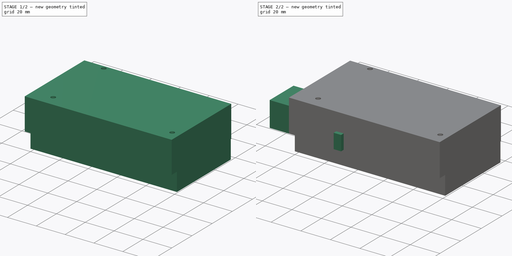
[diagram: build sequence overview — one tinted view per stage of 2, left to right]
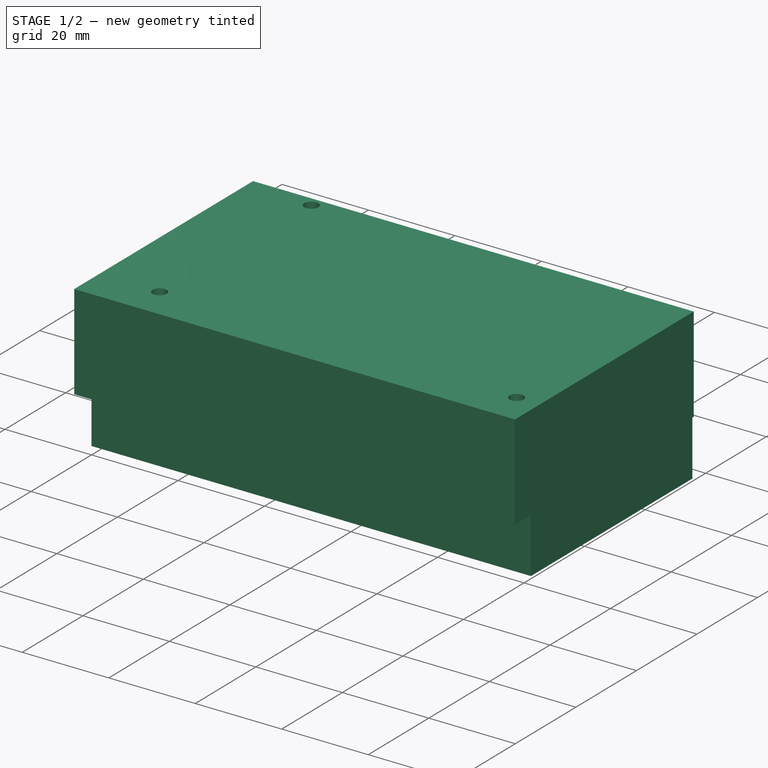
[diagram: stage 1 of 2 — iso view after this stage's code; geometry added in this stage tinted green]
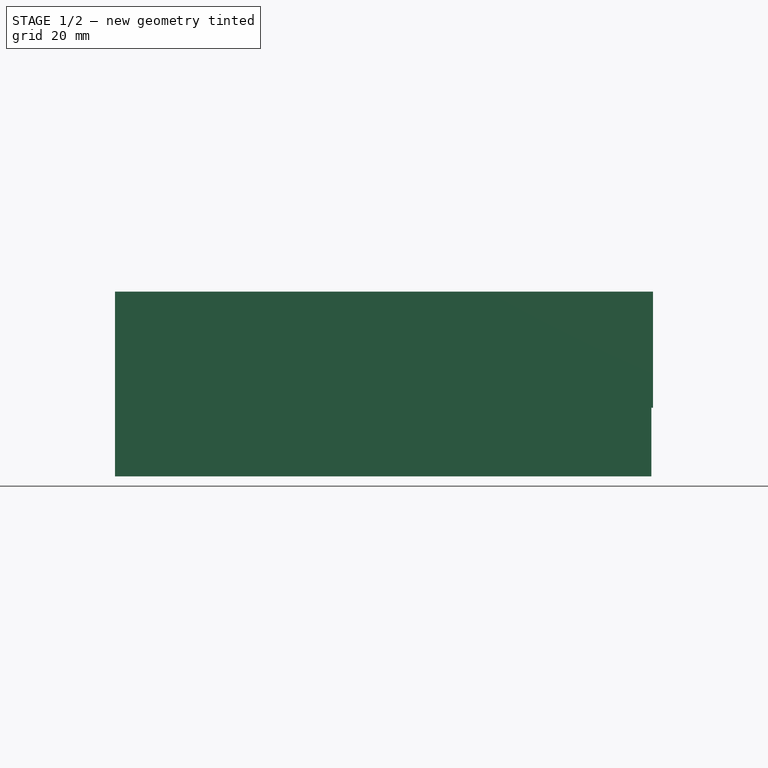
[diagram: stage 1 of 2 — front view after this stage's code; geometry added in this stage tinted green]
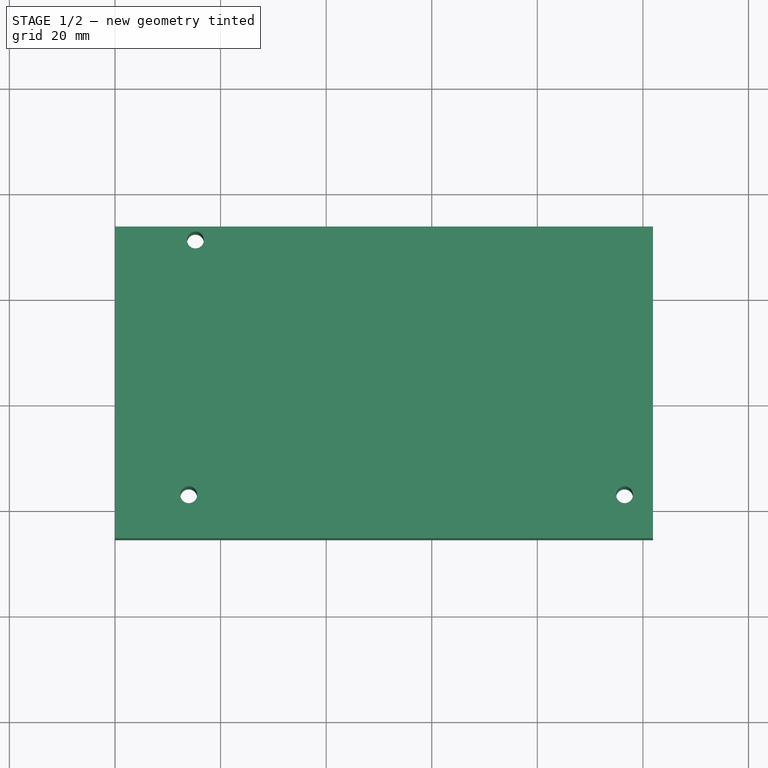
[diagram: stage 1 of 2 — top view after this stage's code; geometry added in this stage tinted green]
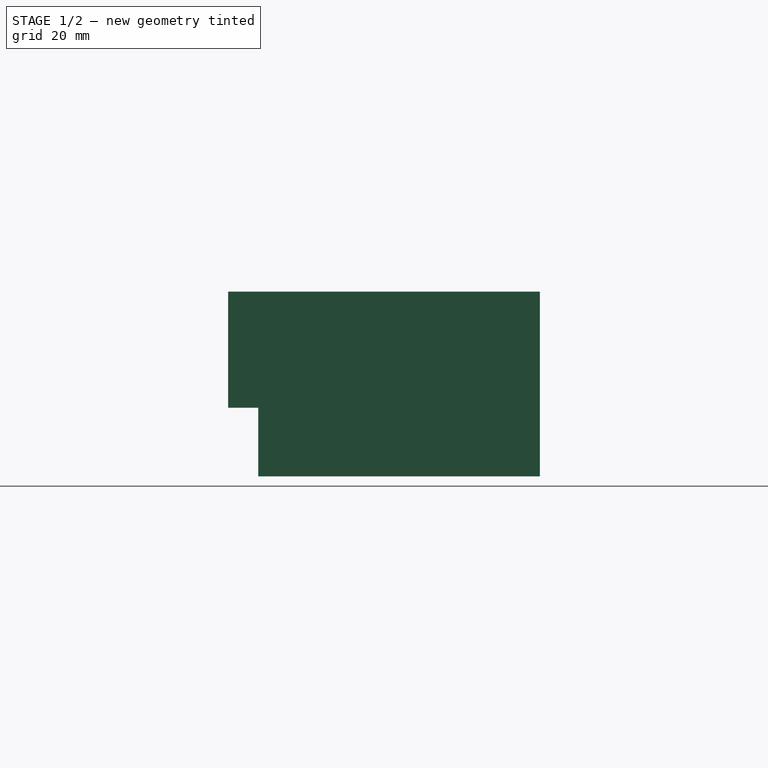
[diagram: stage 1 of 2 — right view after this stage's code; geometry added in this stage tinted green]
FCSTD DOCUMENT  (FreeCAD 0.18R16131 (Git))
Label: ArduinoMegaWithRamps
License: All rights reserved
LicenseURL: http://en.wikipedia.org/wiki/All_rights_reserved
objects: Sketcher::SketchObject×4, PartDesign::Pad×4, PartDesign::Plane×1, PartDesign::Body×1, App::Part×1
note: 14 computed .brp shape members not serialized (recipe doc carries the construction recipe); baked Part::Feature solids carry a one-line shape summary decoded from their .brp

FEATURE [Sketcher::SketchObject] Sketch  label="AtmegaSketch"
  MapMode = 5
  Support = -> [XY_Plane001]
  sketch-geometry (13):
    g0: LineSegment StartX=0 StartY=0 StartZ=0 EndX=101.6 EndY=0 EndZ=0
    g1: LineSegment StartX=101.6 StartY=0 StartZ=0 EndX=101.6 EndY=53.34 EndZ=0
    g2: LineSegment StartX=101.6 StartY=53.34 StartZ=0 EndX=0 EndY=53.34 EndZ=0
    g3: LineSegment StartX=0 StartY=53.34 StartZ=0 EndX=0 EndY=0 EndZ=0
    g4: Circle CenterX=13.97 CenterY=2.54 CenterZ=0 NormalX=0 NormalY=0 NormalZ=1 AngleXU=0 Radius=1.6
    g5: Circle CenterX=15.24 CenterY=50.8 CenterZ=0 NormalX=0 NormalY=0 NormalZ=1 AngleXU=0 Radius=1.6
    g6: Circle CenterX=90.17 CenterY=50.8 CenterZ=0 NormalX=0 NormalY=0 NormalZ=1 AngleXU=0 Radius=1.6
    g7: Circle CenterX=96.52 CenterY=2.54 CenterZ=0 NormalX=0 NormalY=0 NormalZ=1 AngleXU=0 Radius=1.6
    g8: Circle CenterX=66.04 CenterY=35.56 CenterZ=0 NormalX=0 NormalY=0 NormalZ=1 AngleXU=0 Radius=1.6
    g9: Circle CenterX=66.04 CenterY=7.62 CenterZ=0 NormalX=0 NormalY=0 NormalZ=1 AngleXU=0 Radius=1.6
    g10: LineSegment [constr] StartX=66.04 StartY=35.56 StartZ=0 EndX=66.04 EndY=7.62 EndZ=0
    g11: LineSegment [constr] StartX=15.24 StartY=50.8 StartZ=0 EndX=90.17 EndY=50.8 EndZ=0
    g12: LineSegment [constr] StartX=13.97 StartY=2.54 StartZ=0 EndX=96.52 EndY=2.54 EndZ=0
  constraints (35):
    c: Coincident(g0,g1)
    c: Coincident(g1,g2)
    c: Coincident(g2,g3)
    c: Coincident(g3,g0)
    c: Horizontal(g0)
    c: Horizontal(g2)
    c: Vertical(g1)
    c: Vertical(g3)
    c: Coincident(g0,g-1)
    c: Distance(g0) = 101.6
    c: Distance(g3) = 53.34
    c: Radius(g5) = 1.6
    c: Equal(g5,g8)
    c: Equal(g5,g6)
    c: Equal(g5,g9)
    c: Equal(g5,g7)
    c: Equal(g5,g4)
    c: DistanceX(g-2,g4) = 13.97
    c: DistanceX(g4,g5) = 1.27
    c: DistanceX(g5,g8) = 50.8
    c: Coincident(g10,g8)
    c: Coincident(g10,g9)
    c: Vertical(g10)
    c: DistanceX(g8,g6) = 24.13
    c: Coincident(g11,g5)
    c: Coincident(g11,g6)
    c: Horizontal(g11)
    c: Coincident(g12,g4)
    c: Coincident(g12,g7)
    c: Horizontal(g12)
    c: DistanceY(g8,g6) = 15.24
    c: Distance(g10) = 27.94
    c: DistanceY(g7,g9) = 5.08
    c: DistanceY(g0,g7) = 2.54
    c: DistanceX(g-2,g7) = 96.52
FEATURE [PartDesign::Pad] Pad  label="AtmegaPad"
  Length = 13
  Length2 = 100
  Profile = -> Sketch
  Reversed = true
  Type = 0
FEATURE [PartDesign::Plane] DatumPlane  label="RampsPlane"
  AttachmentOffset = pos=(0,-5.71,0) rot=(0,0,1;0rad)
  Length = 131.973
  MapMode = 5
  Placement = pos=(0,-5.71,0) rot=(0,0,1;0rad)
  ResizeMode = 0
  Support = -> [XY_Plane001]
  Width = 80.4027
FEATURE [Sketcher::SketchObject] Sketch001  label="RampsSketch"
  MapMode = 5
  Placement = pos=(0,-5.71,0) rot=(0,0,1;0rad)
  Support = -> [DatumPlane]
  sketch-geometry (8):
    g0: LineSegment StartX=0 StartY=0 StartZ=0 EndX=101.91 EndY=0 EndZ=0
    g1: LineSegment StartX=101.91 StartY=0 StartZ=0 EndX=101.91 EndY=59.05 EndZ=0
    g2: LineSegment StartX=101.91 StartY=59.05 StartZ=0 EndX=0 EndY=59.05 EndZ=0
    g3: LineSegment StartX=0 StartY=59.05 StartZ=0 EndX=0 EndY=0 EndZ=0
    g4: Circle CenterX=13.97 CenterY=8.25 CenterZ=0 NormalX=0 NormalY=0 NormalZ=1 AngleXU=0 Radius=1.6
    g5: Circle CenterX=15.24 CenterY=56.51 CenterZ=0 NormalX=0 NormalY=0 NormalZ=1 AngleXU=0 Radius=1.6
    g6: Circle CenterX=96.52 CenterY=8.25 CenterZ=0 NormalX=0 NormalY=0 NormalZ=1 AngleXU=0 Radius=1.6
    g7: LineSegment [constr] StartX=13.97 StartY=8.25 StartZ=0 EndX=96.52 EndY=8.25 EndZ=0
  constraints (22):
    c: Coincident(g0,g1)
    c: Coincident(g1,g2)
    c: Coincident(g2,g3)
    c: Coincident(g3,g0)
    c: Horizontal(g0)
    c: Horizontal(g2)
    c: Vertical(g1)
    c: Vertical(g3)
    c: Coincident(g0,g-1)
    c: Distance(g2) = 101.91
    c: Distance(g3) = 59.05
    c: Radius(g6) = 1.6
    c: Equal(g6,g4)
    c: Equal(g6,g5)
    c: DistanceX(g-2,g4) = 13.97
    c: DistanceX(g4,g5) = 1.27
    c: Coincident(g7,g4)
    c: Coincident(g7,g6)
    c: Horizontal(g7)
    c: DistanceX(g-2,g6) = 96.52
    c: DistanceY(g4,g5) = 48.26
    c: Distance(g5,g2) = 2.54
FEATURE [PartDesign::Pad] Pad001  label="RampsPad"
  BaseFeature = -> Pad
  Length = 22
  Length2 = 100
  Profile = -> Sketch001
  Type = 0
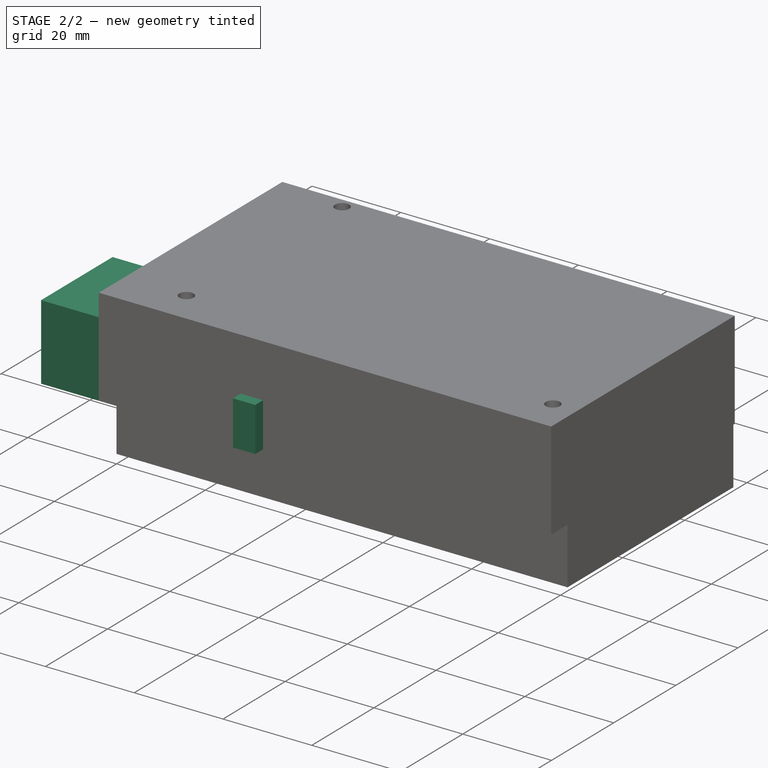
[diagram: stage 2 of 2 — iso view after this stage's code; geometry added in this stage tinted green]
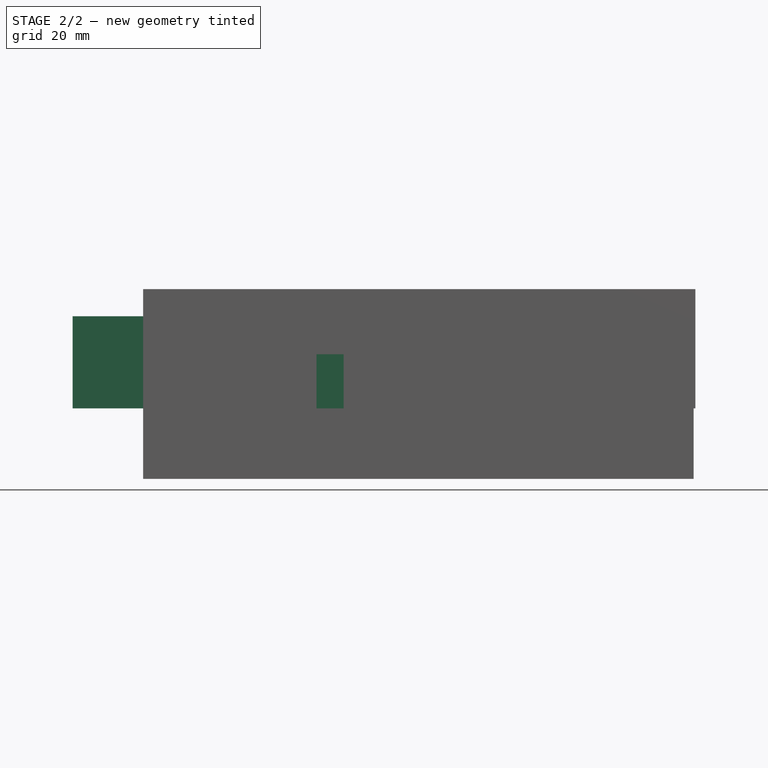
[diagram: stage 2 of 2 — front view after this stage's code; geometry added in this stage tinted green]
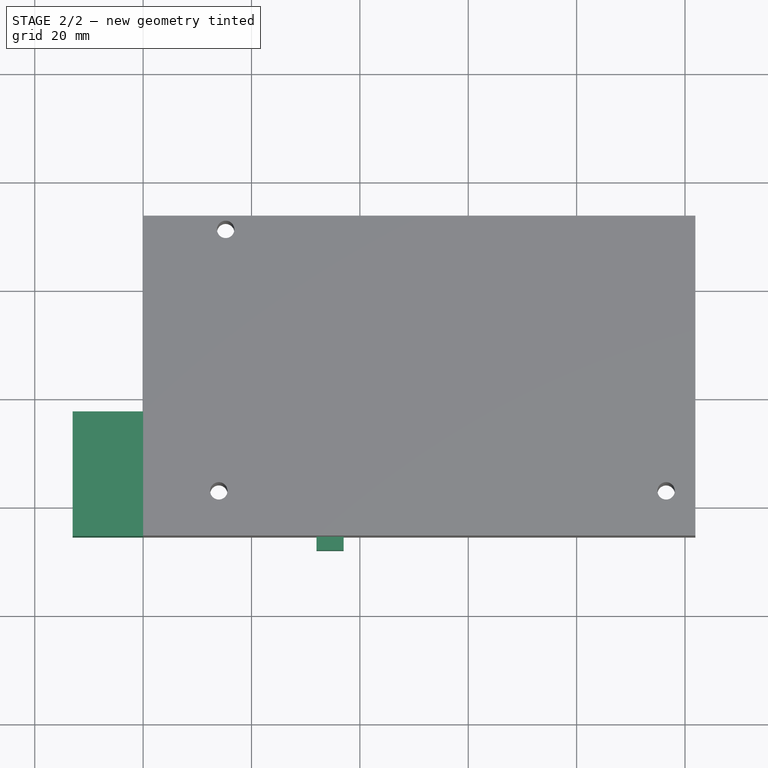
[diagram: stage 2 of 2 — top view after this stage's code; geometry added in this stage tinted green]
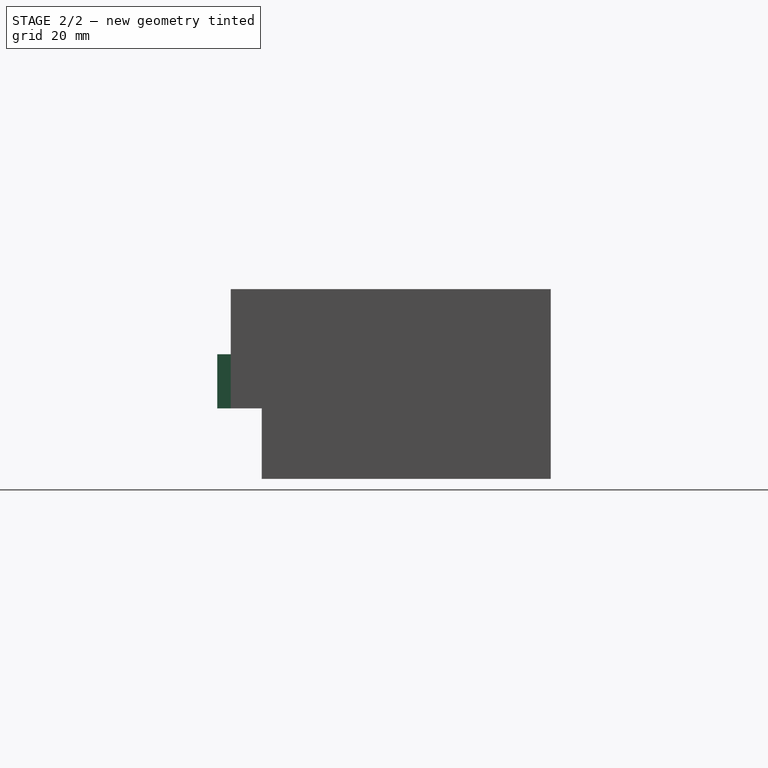
[diagram: stage 2 of 2 — right view after this stage's code; geometry added in this stage tinted green]
FEATURE [Sketcher::SketchObject] Sketch002  label="TerminalSketch"
  MapMode = 5
  Placement = pos=(0,-5.71,0) rot=(0,0,1;0rad)
  Support = -> [DatumPlane]
  sketch-geometry (4):
    g0: LineSegment StartX=0 StartY=0 StartZ=0 EndX=-13 EndY=0 EndZ=0
    g1: LineSegment StartX=-13 StartY=0 StartZ=0 EndX=-13 EndY=23 EndZ=0
    g2: LineSegment StartX=-13 StartY=23 StartZ=0 EndX=0 EndY=23 EndZ=0
    g3: LineSegment StartX=0 StartY=23 StartZ=0 EndX=0 EndY=0 EndZ=0
  constraints (11):
    c: Coincident(g0,g1)
    c: Coincident(g1,g2)
    c: Coincident(g2,g3)
    c: Coincident(g3,g0)
    c: Horizontal(g0)
    c: Horizontal(g2)
    c: Vertical(g1)
    c: Vertical(g3)
    c: Coincident(g0,g-1)
    c: Distance(g0) = 13
    c: Distance(g1) = 23
FEATURE [PartDesign::Pad] Pad002  label="TerminalPad"
  BaseFeature = -> Pad001
  Length = 17
  Length2 = 100
  Profile = -> Sketch002
  Type = 0
FEATURE [Sketcher::SketchObject] Sketch003  label="ResetButtonSketch"
  MapMode = 5
  Placement = pos=(0,-5.71,0) rot=(0,0,1;0rad)
  Support = -> [DatumPlane]
  sketch-geometry (4):
    g0: LineSegment StartX=32 StartY=0 StartZ=0 EndX=37 EndY=0 EndZ=0
    g1: LineSegment StartX=37 StartY=0 StartZ=0 EndX=37 EndY=-2.5 EndZ=0
    g2: LineSegment StartX=37 StartY=-2.5 StartZ=0 EndX=32 EndY=-2.5 EndZ=0
    g3: LineSegment StartX=32 StartY=-2.5 StartZ=0 EndX=32 EndY=0 EndZ=0
  constraints (12):
    c: Coincident(g0,g1)
    c: Coincident(g1,g2)
    c: Coincident(g2,g3)
    c: Coincident(g3,g0)
    c: Horizontal(g0)
    c: Horizontal(g2)
    c: Vertical(g1)
    c: Vertical(g3)
    c: PointOnObject(g0,g-1)
    c: DistanceX(g-2,g0) = 32
    c: Distance(g2) = 5
    c: Distance(g3) = 2.5
FEATURE [PartDesign::Pad] Pad003  label="ResetButtonPad"
  BaseFeature = -> Pad002
  Length = 10
  Length2 = 100
  Profile = -> Sketch003
  Type = 0
FEATURE [PartDesign::Body] Body  label="BoardBody"
  Group = -> [Sketch,Pad,DatumPlane,Sketch001,Pad001,Sketch002,Pad002,Sketch003,Pad003]
  Origin = -> Origin001
  Tip = -> Pad003
FEATURE [App::Part] Part  label="BoardPart"
  Group = -> [Body]
  Origin = -> Origin
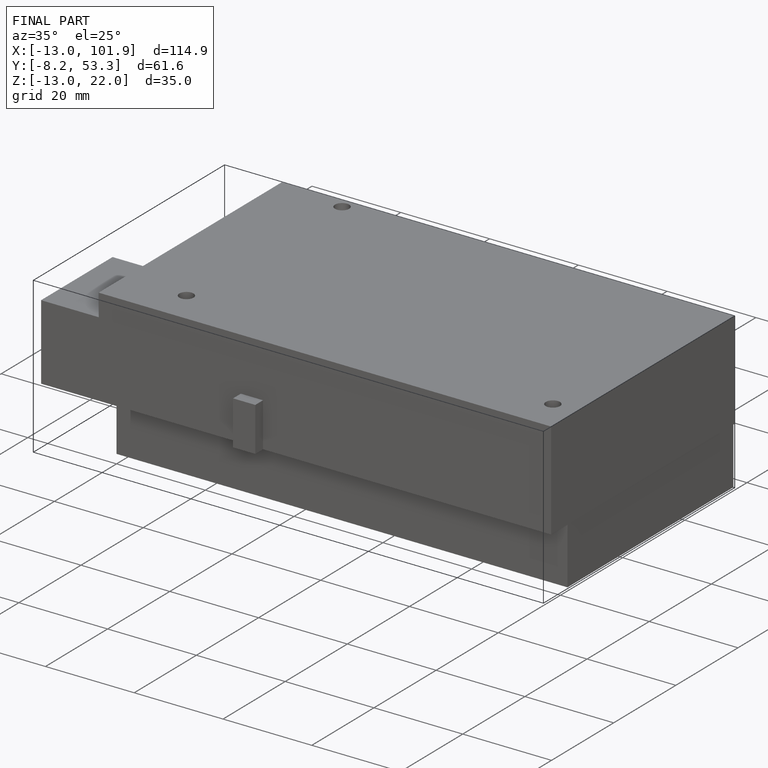
[diagram: finished part — iso view with bounding-box wireframe]
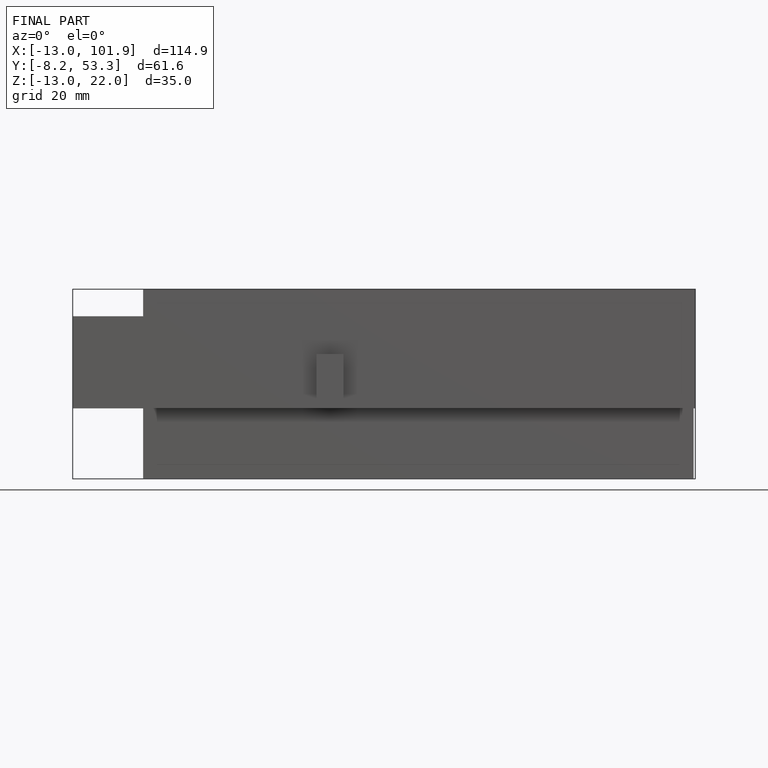
[diagram: finished part — front view with bounding-box wireframe]
